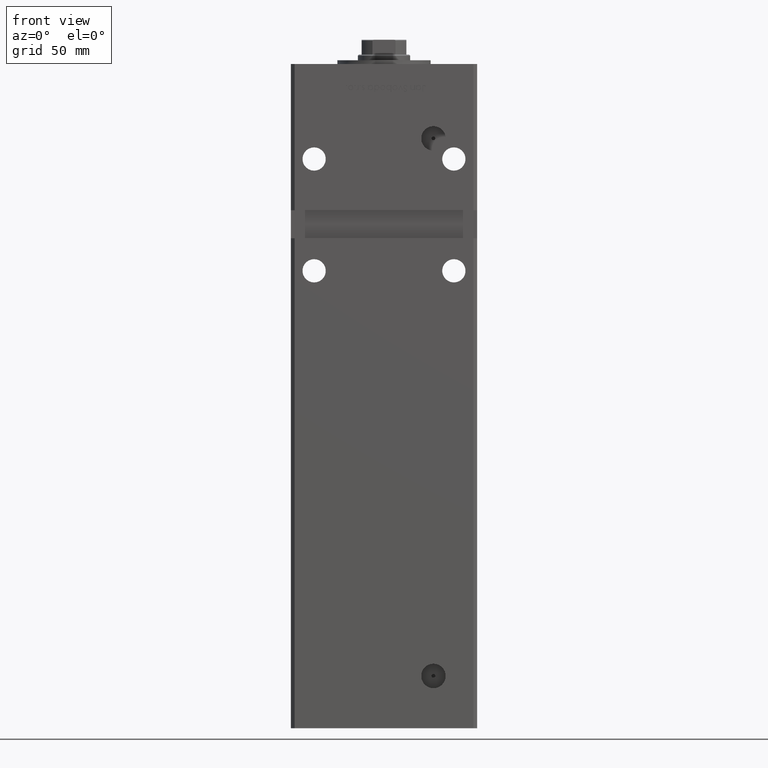
[diagram: clean part render]
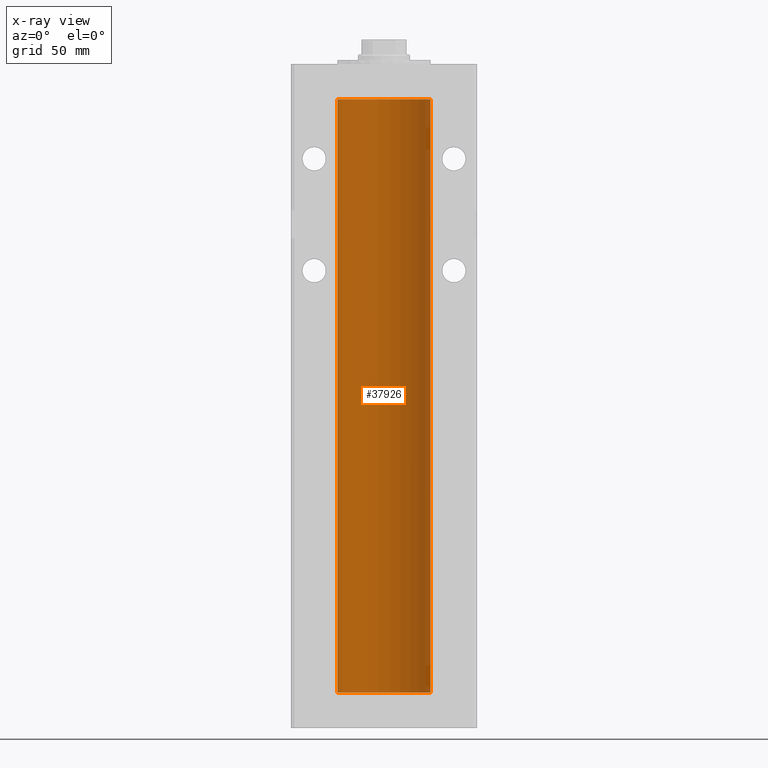
[diagram: x-ray — body ghosted, one internal face saturated and labeled with its STEP entity id]
A machine part, front view, then the same camera in x-ray: the body is ghosted and one INTERNAL B-rep face — a face not visible from any outside direction — is saturated and labeled: STEP entity #37926.
In plain terms, the highlighted cylindrical surface (partial cylindrical patch) has radius 25 mm, axis along (-0, -0, -1).
Its self-contained STEP definition (entity closure, byte-faithful):
#1852 = EDGE_CURVE ( 'NONE', #32303, #47895, #47343, .T. ) ;
#2866 = DIRECTION ( 'NONE',  ( 1.000000000000000000, 0.000000000000000000, 0.000000000000000000 ) ) ;
#2876 = CYLINDRICAL_SURFACE ( 'NONE', #4835, 25.00000000000000000 ) ;
#4061 = ORIENTED_EDGE ( 'NONE', *, *, #1852, .F. ) ;
#4835 = AXIS2_PLACEMENT_3D ( 'NONE', #52322, #40217, #35908 ) ;
#7166 = FACE_OUTER_BOUND ( 'NONE', #17196, .T. ) ;
#8487 = EDGE_CURVE ( 'NONE', #34318, #32303, #33265, .T. ) ;
#8885 = VECTOR ( 'NONE', #21154, 1000.000000000000000 ) ;
#10636 = CARTESIAN_POINT ( 'NONE',  ( 0.000000000000000000, 0.000000000000000000, 0.000000000000000000 ) ) ;
#15250 = EDGE_CURVE ( 'NONE', #36125, #47895, #19541, .T. ) ;
#17196 = EDGE_LOOP ( 'NONE', ( #50119, #29625, #29952, #4061 ) ) ;
#17917 = CARTESIAN_POINT ( 'NONE',  ( 25.00000000000000000, 3.061616997868383043E-15, 318.5000000000000000 ) ) ;
#19541 = LINE ( 'NONE', #20322, #37427 ) ;
#19752 = DIRECTION ( 'NONE',  ( -0.000000000000000000, 0.000000000000000000, 1.000000000000000000 ) ) ;
#20249 = AXIS2_PLACEMENT_3D ( 'NONE', #41876, #41337, #45372 ) ;
#20322 = CARTESIAN_POINT ( 'NONE',  ( -25.00000000000000000, 0.000000000000000000, 318.5000000000000000 ) ) ;
#21154 = DIRECTION ( 'NONE',  ( -0.000000000000000000, -0.000000000000000000, -1.000000000000000000 ) ) ;
#26210 = CARTESIAN_POINT ( 'NONE',  ( 25.00000000000000000, 3.061616997868383043E-15, 0.000000000000000000 ) ) ;
#29625 = ORIENTED_EDGE ( 'NONE', *, *, #38453, .T. ) ;
#29952 = ORIENTED_EDGE ( 'NONE', *, *, #15250, .T. ) ;
#31663 = DIRECTION ( 'NONE',  ( -0.000000000000000000, -0.000000000000000000, -1.000000000000000000 ) ) ;
#32275 = CIRCLE ( 'NONE', #20249, 25.00000000000000000 ) ;
#32303 = VERTEX_POINT ( 'NONE', #26210 ) ;
#33265 = LINE ( 'NONE', #17917, #8885 ) ;
#34084 = CARTESIAN_POINT ( 'NONE',  ( -25.00000000000000000, 0.000000000000000000, 0.000000000000000000 ) ) ;
#34318 = VERTEX_POINT ( 'NONE', #37782 ) ;
#34382 = CARTESIAN_POINT ( 'NONE',  ( -25.00000000000000000, 0.000000000000000000, 318.5000000000000000 ) ) ;
#35908 = DIRECTION ( 'NONE',  ( -1.000000000000000000, 0.000000000000000000, 0.000000000000000000 ) ) ;
#36125 = VERTEX_POINT ( 'NONE', #34382 ) ;
#37427 = VECTOR ( 'NONE', #31663, 1000.000000000000000 ) ;
#37782 = CARTESIAN_POINT ( 'NONE',  ( 25.00000000000000000, 3.061616997868383043E-15, 318.5000000000000000 ) ) ;
#37926 = ADVANCED_FACE ( 'NONE', ( #7166 ), #2876, .F. ) ;
#38453 = EDGE_CURVE ( 'NONE', #34318, #36125, #32275, .T. ) ;
#39621 = AXIS2_PLACEMENT_3D ( 'NONE', #10636, #19752, #2866 ) ;
#40217 = DIRECTION ( 'NONE',  ( -0.000000000000000000, -0.000000000000000000, -1.000000000000000000 ) ) ;
#41337 = DIRECTION ( 'NONE',  ( -0.000000000000000000, 0.000000000000000000, 1.000000000000000000 ) ) ;
#41876 = CARTESIAN_POINT ( 'NONE',  ( 0.000000000000000000, 0.000000000000000000, 318.5000000000000000 ) ) ;
#45372 = DIRECTION ( 'NONE',  ( 1.000000000000000000, 0.000000000000000000, 0.000000000000000000 ) ) ;
#47343 = CIRCLE ( 'NONE', #39621, 25.00000000000000000 ) ;
#47895 = VERTEX_POINT ( 'NONE', #34084 ) ;
#50119 = ORIENTED_EDGE ( 'NONE', *, *, #8487, .F. ) ;
#52322 = CARTESIAN_POINT ( 'NONE',  ( 0.000000000000000000, 0.000000000000000000, 318.5000000000000000 ) ) ;